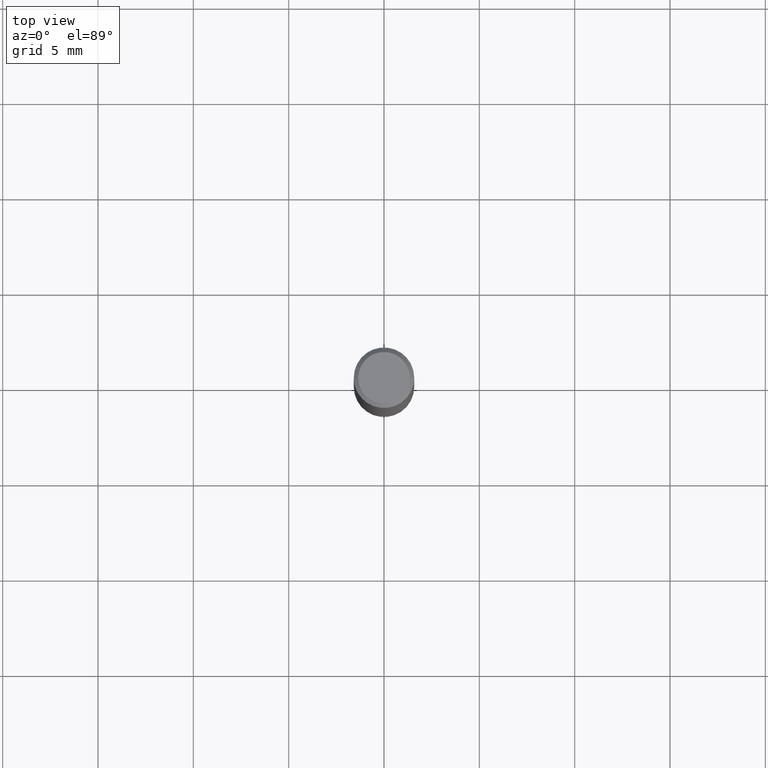
[diagram: clean part render]
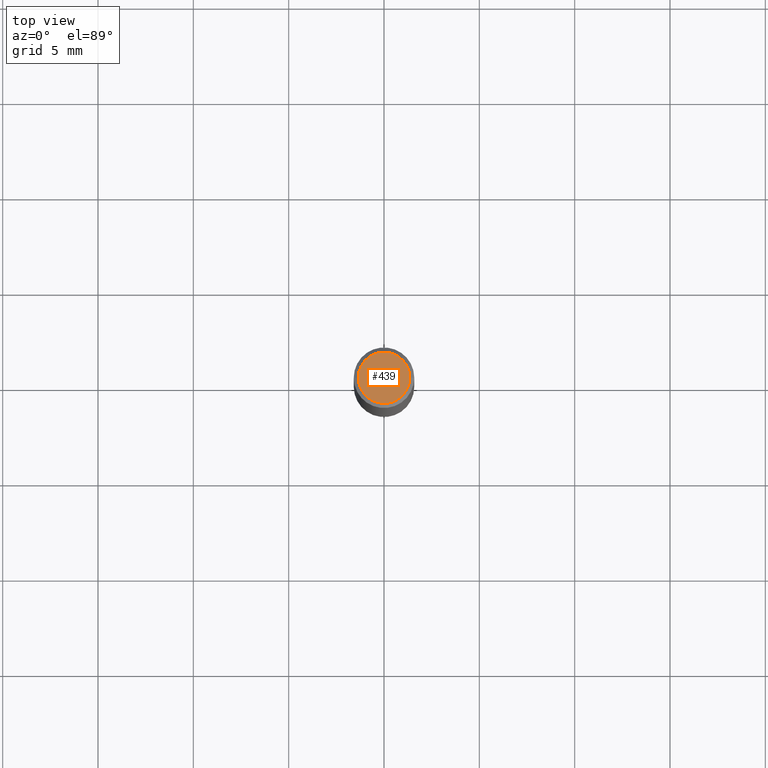
[diagram: same view with one face highlighted and labeled with its STEP entity id]
A machine part, top view. The second image highlights one B-rep face of the part: STEP entity #439.
In plain terms, the highlighted planar face has unit normal (0, -0, -1).
Its self-contained STEP definition (entity closure, byte-faithful):
#8 = AXIS2_PLACEMENT_3D ( 'NONE', #480, #213, #121 ) ;
#47 = CARTESIAN_POINT ( 'NONE',  ( 0.05312499999999999861, -4.129888592719939842E-16, -5.787680772767651417E-18 ) ) ;
#98 = CARTESIAN_POINT ( 'NONE',  ( 7.076796394983739835E-47, -1.010378970665454992E-32, -2.893840386385196200E-18 ) ) ;
#121 = DIRECTION ( 'NONE',  ( 1.000000000000000000, -6.982962677686266711E-15, 4.875930095424100059E-29 ) ) ;
#122 = ORIENTED_EDGE ( 'NONE', *, *, #189, .T. ) ;
#128 = CARTESIAN_POINT ( 'NONE',  ( -0.05312499999999999861, 3.873362110279099094E-16, -5.787680772773044021E-18 ) ) ;
#142 = EDGE_CURVE ( 'NONE', #519, #255, #240, .T. ) ;
#189 = EDGE_CURVE ( 'NONE', #255, #519, #402, .T. ) ;
#197 = DIRECTION ( 'NONE',  ( -1.000000000000000000, 6.982962677686265922E-15, -4.876176775795935793E-29 ) ) ;
#213 = DIRECTION ( 'NONE',  ( -2.445468806185136597E-29, 3.491481338843145583E-15, 1.000000000000000000 ) ) ;
#226 = AXIS2_PLACEMENT_3D ( 'NONE', #387, #488, #385 ) ;
#238 = FACE_OUTER_BOUND ( 'NONE', #352, .T. ) ;
#240 = CIRCLE ( 'NONE', #8, 0.05312499999999999861 ) ;
#241 = PLANE ( 'NONE',  #270 ) ;
#255 = VERTEX_POINT ( 'NONE', #47 ) ;
#270 = AXIS2_PLACEMENT_3D ( 'NONE', #98, #461, #197 ) ;
#352 = EDGE_LOOP ( 'NONE', ( #452, #122 ) ) ;
#385 = DIRECTION ( 'NONE',  ( 1.000000000000000000, -6.982962677686266711E-15, 4.875930095424100059E-29 ) ) ;
#387 = CARTESIAN_POINT ( 'NONE',  ( 1.415359278996747967E-46, -2.020757941330909984E-32, -5.787680772770392401E-18 ) ) ;
#402 = CIRCLE ( 'NONE', #226, 0.05312499999999999861 ) ;
#439 = ADVANCED_FACE ( 'NONE', ( #238 ), #241, .F. ) ;
#452 = ORIENTED_EDGE ( 'NONE', *, *, #142, .T. ) ;
#461 = DIRECTION ( 'NONE',  ( 2.438088387897960049E-29, -3.491481338843145188E-15, -1.000000000000000000 ) ) ;
#480 = CARTESIAN_POINT ( 'NONE',  ( 1.415359278996747967E-46, -2.020757941330909984E-32, -5.787680772770392401E-18 ) ) ;
#488 = DIRECTION ( 'NONE',  ( -2.445468806185136597E-29, 3.491481338843145583E-15, 1.000000000000000000 ) ) ;
#519 = VERTEX_POINT ( 'NONE', #128 ) ;